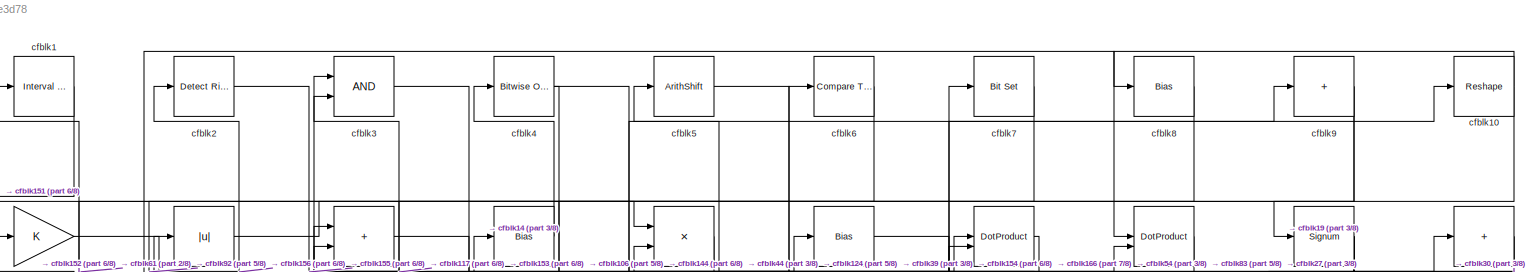
[diagram: root canvas - part 1/8, full width, top band]
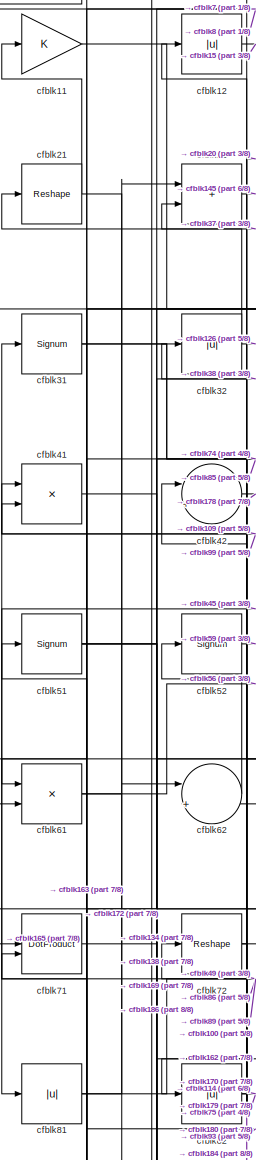
[diagram: root canvas - part 2/8, top left region]
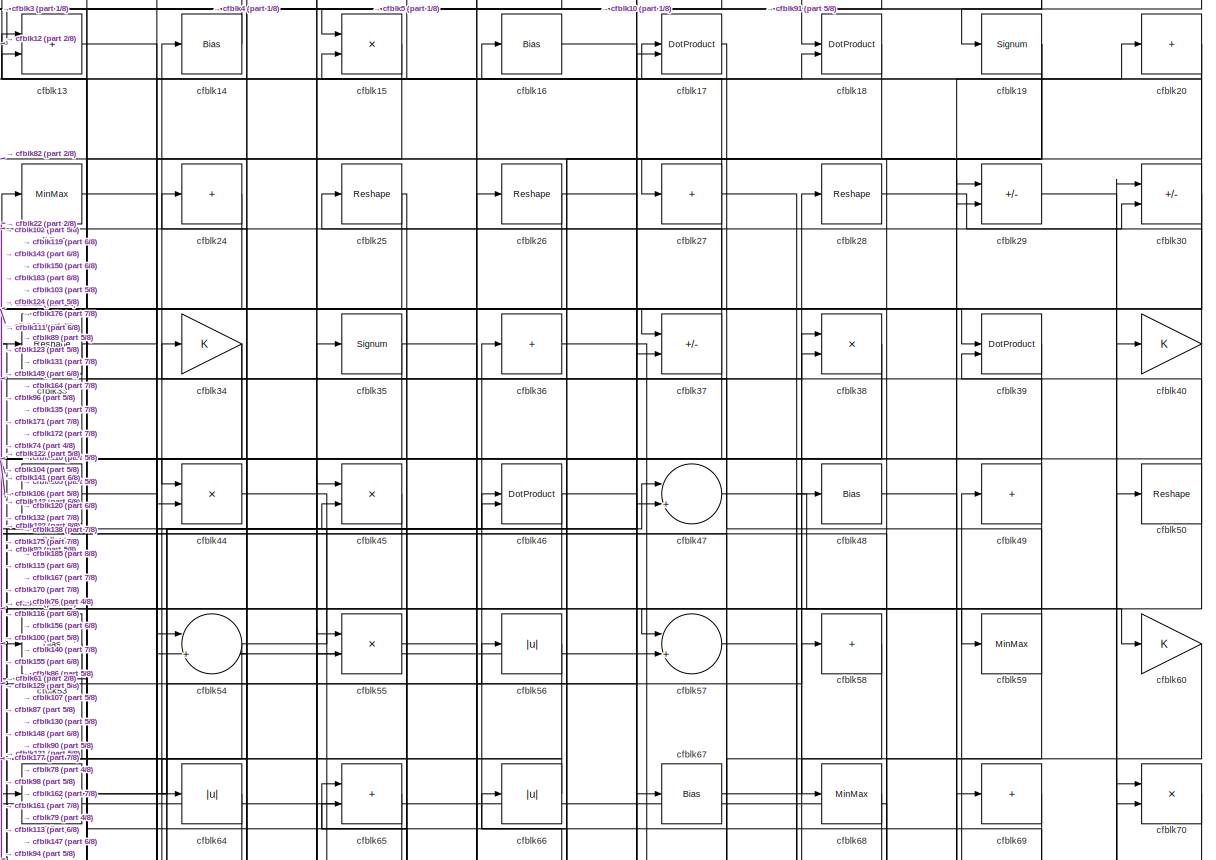
[diagram: root canvas - part 3/8, full width, top band]
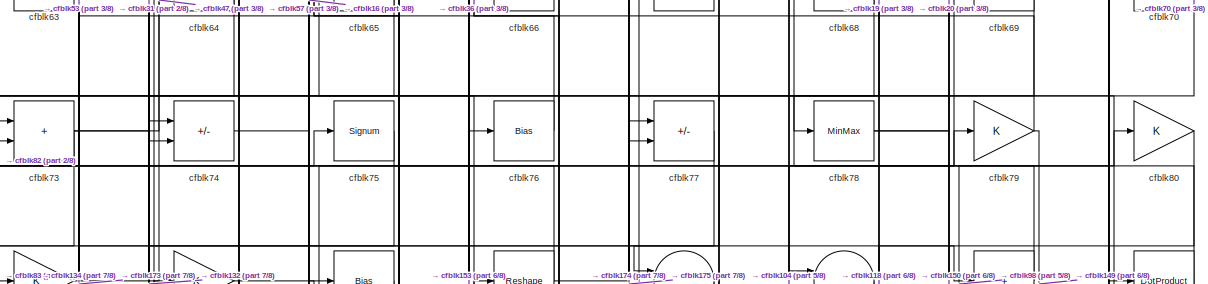
[diagram: root canvas - part 4/8, full width, middle band]
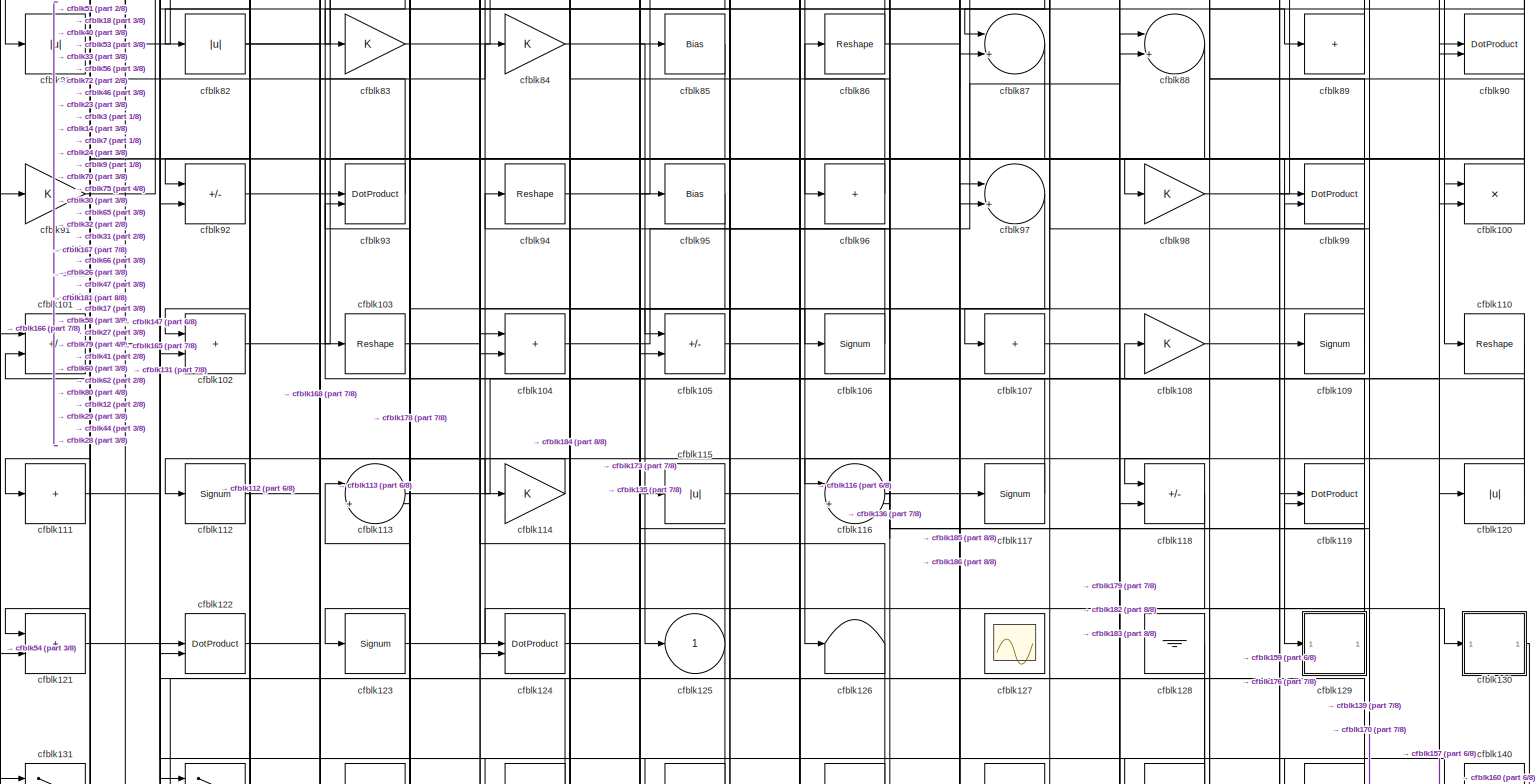
[diagram: root canvas - part 5/8, full width, middle band]
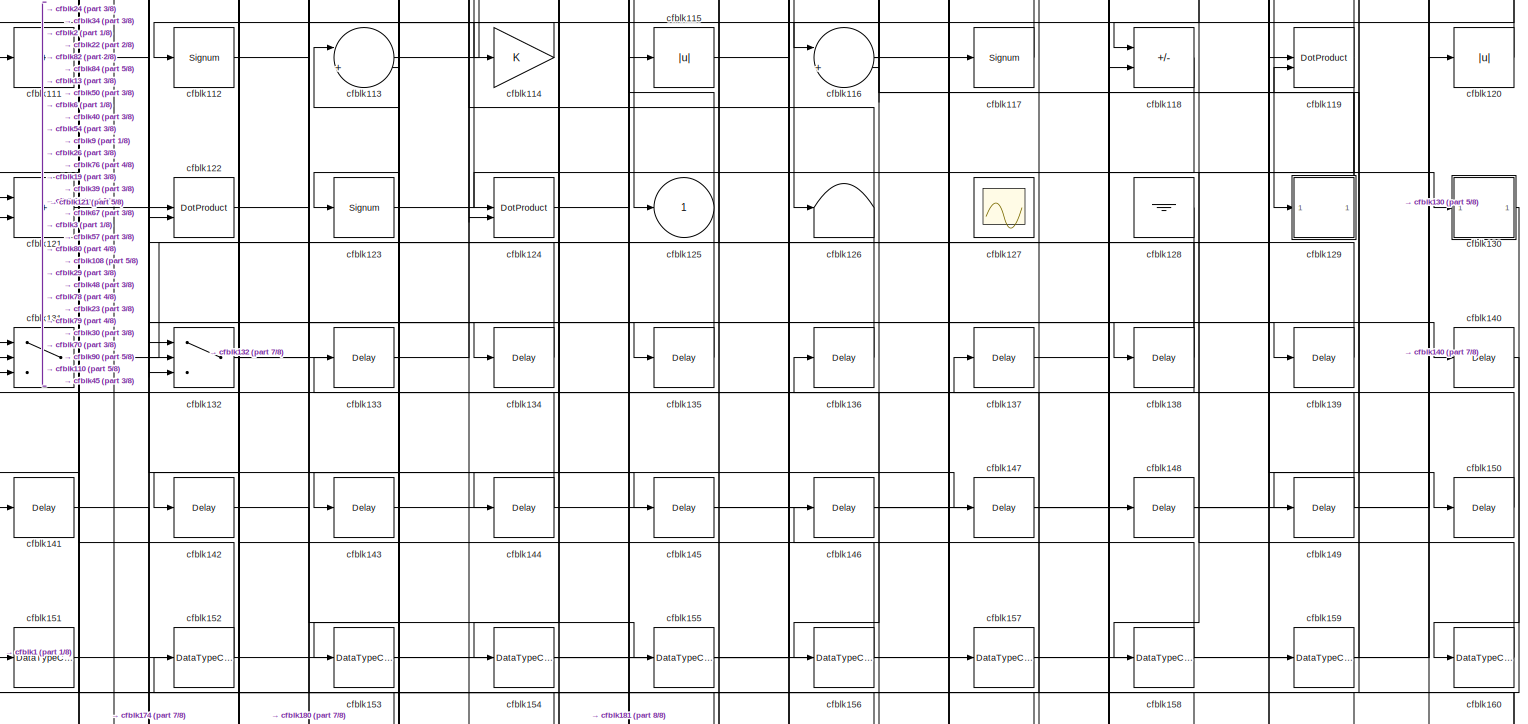
[diagram: root canvas - part 6/8, full width, bottom band]
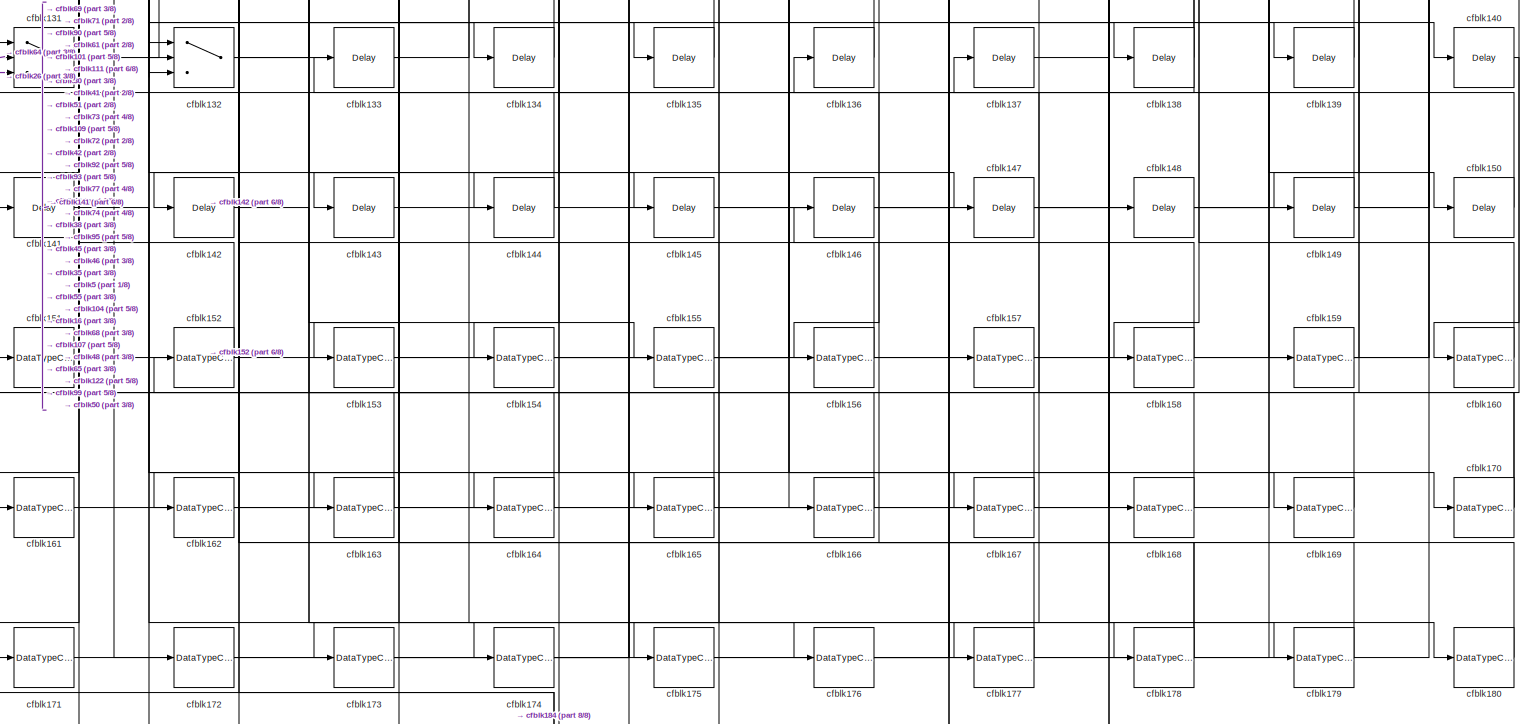
[diagram: root canvas - part 7/8, full width, bottom band]
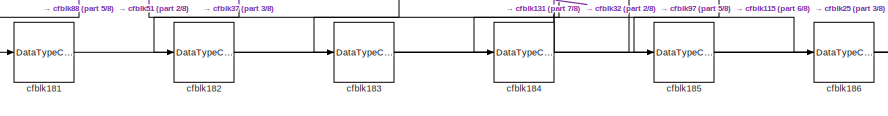
[diagram: root canvas - part 8/8, bottom left region]
MODEL slx_370438ae3d78
KIND model
CONFIG AbsTol = auto
CONFIG EnableMultiTasking = off
CONFIG FixedStep = auto
CONFIG MaxStep = auto
CONFIG MinStep = auto
CONFIG RelTol = 1e-3
CONFIG SampleTimeConstraint = Unconstrained
CONFIG SolverName = VariableStepAuto
CONFIG StartTime = 0.0
CONFIG StopTime = 10.0
BLOCK [Reference] cfblk1  REF=hdlsllib/Logic and Bit
Operations/Interval Test
  SourceBlock = hdlsllib/Logic and Bit\nOperations/Interval Test
  SourceType = Interval Test
BLOCK [Reshape] cfblk10
BLOCK [Product] cfblk100
  Inputs = */
  RndMeth = Zero
  SaturateOnIntegerOverflow = on
BLOCK [Sum] cfblk101
  IconShape = rectangular
  Inputs = +-
BLOCK [Sum] cfblk102
  IconShape = rectangular
BLOCK [Reshape] cfblk103
BLOCK [Sum] cfblk104
  IconShape = rectangular
BLOCK [Sum] cfblk105
  IconShape = rectangular
  Inputs = +-
BLOCK [Signum] cfblk106
BLOCK [Sum] cfblk107
  IconShape = rectangular
  Inputs = +
BLOCK [Gain] cfblk108
BLOCK [Signum] cfblk109
BLOCK [Gain] cfblk11
BLOCK [Reshape] cfblk110
BLOCK [Sum] cfblk111
  IconShape = rectangular
  Inputs = +
BLOCK [Signum] cfblk112
BLOCK [Sum] cfblk113
  Inputs = |++
BLOCK [Gain] cfblk114
BLOCK [Abs] cfblk115
  SaturateOnIntegerOverflow = off
BLOCK [Sum] cfblk116
  Inputs = |++
BLOCK [Signum] cfblk117
BLOCK [Sum] cfblk118
  IconShape = rectangular
  Inputs = +-
BLOCK [DotProduct] cfblk119
  OutDataTypeStr = Inherit: Inherit via internal rule
BLOCK [Abs] cfblk12
  SaturateOnIntegerOverflow = off
BLOCK [Abs] cfblk120
  SaturateOnIntegerOverflow = off
BLOCK [Sum] cfblk121
  IconShape = rectangular
BLOCK [DotProduct] cfblk122
  OutDataTypeStr = Inherit: Inherit via internal rule
BLOCK [Signum] cfblk123
BLOCK [DotProduct] cfblk124
  OutDataTypeStr = Inherit: Inherit via internal rule
BLOCK [Outport] cfblk125
  VectorParamsAs1DForOutWhenUnconnected = off
BLOCK [Terminator] cfblk126
BLOCK [Scope] cfblk127
  Floating = on
  NumInputPorts = 1
  ScopeSpecificationString = Simulink.scopes.TimeScopeBlockCfg('CurrentConfiguration', extmgr.ConfigurationSet(extmgr.Configuration('Core','General UI',true,'FigureColor',[0.156862745098039 0.156862745098039 0.156862745098039]),extmgr.Configuration('Core','Source UI',true),extmgr.Configuration('Sources','WiredSimulink',true,'DataLoggingVariableName','ScopeData1','DataLoggingSaveFormat','StructureWithTime','DataLoggingLimitDat...<+2713ch>
BLOCK [Ground] cfblk128
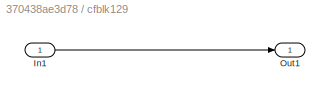
BLOCK [SubSystem] cfblk129
  LibrarySourceBlock = hdlsllib/Ports &\nSubsystems/Subsystem
BLOCK [Inport] cfblk129/In1
BLOCK [Outport] cfblk129/Out1
BLOCK [Sum] cfblk13
  IconShape = rectangular
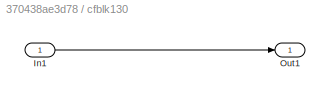
BLOCK [SubSystem] cfblk130
  LibrarySourceBlock = hdlsllib/Ports &\nSubsystems/Subsystem
BLOCK [Inport] cfblk130/In1
BLOCK [Outport] cfblk130/Out1
BLOCK [Switch] cfblk131
  InputSameDT = off
  SaturateOnIntegerOverflow = off
BLOCK [Switch] cfblk132
  InputSameDT = off
  SaturateOnIntegerOverflow = off
BLOCK [Delay] cfblk133
  InputPortMap = u0
  SampleTime = 1
BLOCK [Delay] cfblk134
  InputPortMap = u0
  SampleTime = 1
BLOCK [Delay] cfblk135
  InputPortMap = u0
  SampleTime = 1
BLOCK [Delay] cfblk136
  InputPortMap = u0
  SampleTime = 1
BLOCK [Delay] cfblk137
  InputPortMap = u0
  SampleTime = 1
BLOCK [Delay] cfblk138
  InputPortMap = u0
  SampleTime = 1
BLOCK [Delay] cfblk139
  InputPortMap = u0
  SampleTime = 1
BLOCK [Bias] cfblk14
  Bias = 0.0
  SaturateOnIntegerOverflow = off
BLOCK [Delay] cfblk140
  InputPortMap = u0
  SampleTime = 1
BLOCK [Delay] cfblk141
  InputPortMap = u0
  SampleTime = 1
BLOCK [Delay] cfblk142
  InputPortMap = u0
  SampleTime = 1
BLOCK [Delay] cfblk143
  InputPortMap = u0
  SampleTime = 1
BLOCK [Delay] cfblk144
  InputPortMap = u0
  SampleTime = 1
BLOCK [Delay] cfblk145
  InputPortMap = u0
  SampleTime = 1
BLOCK [Delay] cfblk146
  InputPortMap = u0
  SampleTime = 1
BLOCK [Delay] cfblk147
  InputPortMap = u0
  SampleTime = 1
BLOCK [Delay] cfblk148
  InputPortMap = u0
  SampleTime = 1
BLOCK [Delay] cfblk149
  InputPortMap = u0
  SampleTime = 1
BLOCK [Product] cfblk15
  Inputs = */
  RndMeth = Zero
  SaturateOnIntegerOverflow = on
BLOCK [Delay] cfblk150
  InputPortMap = u0
  SampleTime = 1
BLOCK [DataTypeConversion] cfblk151
  OutDataTypeStr = uint8
  RndMeth = Floor
  SaturateOnIntegerOverflow = off
BLOCK [DataTypeConversion] cfblk152
  OutDataTypeStr = uint8
  RndMeth = Floor
  SaturateOnIntegerOverflow = off
BLOCK [DataTypeConversion] cfblk153
  OutDataTypeStr = uint8
  RndMeth = Floor
  SaturateOnIntegerOverflow = off
BLOCK [DataTypeConversion] cfblk154
  OutDataTypeStr = uint8
  RndMeth = Floor
  SaturateOnIntegerOverflow = off
BLOCK [DataTypeConversion] cfblk155
  OutDataTypeStr = uint8
  RndMeth = Floor
  SaturateOnIntegerOverflow = off
BLOCK [DataTypeConversion] cfblk156
  OutDataTypeStr = uint8
  RndMeth = Floor
  SaturateOnIntegerOverflow = off
BLOCK [DataTypeConversion] cfblk157
  OutDataTypeStr = uint8
  RndMeth = Floor
  SaturateOnIntegerOverflow = off
BLOCK [DataTypeConversion] cfblk158
  OutDataTypeStr = uint8
  RndMeth = Floor
  SaturateOnIntegerOverflow = off
BLOCK [DataTypeConversion] cfblk159
  OutDataTypeStr = uint8
  RndMeth = Floor
  SaturateOnIntegerOverflow = off
BLOCK [Bias] cfblk16
  Bias = 0.0
  SaturateOnIntegerOverflow = off
BLOCK [DataTypeConversion] cfblk160
  OutDataTypeStr = uint8
  RndMeth = Floor
  SaturateOnIntegerOverflow = off
BLOCK [DataTypeConversion] cfblk161
  OutDataTypeStr = uint8
  RndMeth = Floor
  SaturateOnIntegerOverflow = off
BLOCK [DataTypeConversion] cfblk162
  OutDataTypeStr = uint8
  RndMeth = Floor
  SaturateOnIntegerOverflow = off
BLOCK [DataTypeConversion] cfblk163
  OutDataTypeStr = uint8
  RndMeth = Floor
  SaturateOnIntegerOverflow = off
BLOCK [DataTypeConversion] cfblk164
  OutDataTypeStr = uint8
  RndMeth = Floor
  SaturateOnIntegerOverflow = off
BLOCK [DataTypeConversion] cfblk165
  OutDataTypeStr = uint8
  RndMeth = Floor
  SaturateOnIntegerOverflow = off
BLOCK [DataTypeConversion] cfblk166
  OutDataTypeStr = uint8
  RndMeth = Floor
  SaturateOnIntegerOverflow = off
BLOCK [DataTypeConversion] cfblk167
  OutDataTypeStr = uint8
  RndMeth = Floor
  SaturateOnIntegerOverflow = off
BLOCK [DataTypeConversion] cfblk168
  OutDataTypeStr = uint8
  RndMeth = Floor
  SaturateOnIntegerOverflow = off
BLOCK [DataTypeConversion] cfblk169
  OutDataTypeStr = uint8
  RndMeth = Floor
  SaturateOnIntegerOverflow = off
BLOCK [DotProduct] cfblk17
  OutDataTypeStr = Inherit: Inherit via internal rule
BLOCK [DataTypeConversion] cfblk170
  RndMeth = Floor
  SaturateOnIntegerOverflow = off
BLOCK [DataTypeConversion] cfblk171
  OutDataTypeStr = uint8
  RndMeth = Floor
  SaturateOnIntegerOverflow = off
BLOCK [DataTypeConversion] cfblk172
  OutDataTypeStr = uint8
  RndMeth = Floor
  SaturateOnIntegerOverflow = off
BLOCK [DataTypeConversion] cfblk173
  OutDataTypeStr = uint8
  RndMeth = Floor
  SaturateOnIntegerOverflow = off
BLOCK [DataTypeConversion] cfblk174
  OutDataTypeStr = uint8
  RndMeth = Floor
  SaturateOnIntegerOverflow = off
BLOCK [DataTypeConversion] cfblk175
  OutDataTypeStr = uint8
  RndMeth = Floor
  SaturateOnIntegerOverflow = off
BLOCK [DataTypeConversion] cfblk176
  RndMeth = Floor
  SaturateOnIntegerOverflow = off
BLOCK [DataTypeConversion] cfblk177
  OutDataTypeStr = uint8
  RndMeth = Floor
  SaturateOnIntegerOverflow = off
BLOCK [DataTypeConversion] cfblk178
  RndMeth = Floor
  SaturateOnIntegerOverflow = off
BLOCK [DataTypeConversion] cfblk179
  OutDataTypeStr = uint8
  RndMeth = Floor
  SaturateOnIntegerOverflow = off
BLOCK [DotProduct] cfblk18
  OutDataTypeStr = Inherit: Inherit via internal rule
BLOCK [DataTypeConversion] cfblk180
  OutDataTypeStr = uint8
  RndMeth = Floor
  SaturateOnIntegerOverflow = off
BLOCK [DataTypeConversion] cfblk181
  OutDataTypeStr = uint8
  RndMeth = Floor
  SaturateOnIntegerOverflow = off
BLOCK [DataTypeConversion] cfblk182
  OutDataTypeStr = uint8
  RndMeth = Floor
  SaturateOnIntegerOverflow = off
BLOCK [DataTypeConversion] cfblk183
  OutDataTypeStr = uint8
  RndMeth = Floor
  SaturateOnIntegerOverflow = off
BLOCK [DataTypeConversion] cfblk184
  RndMeth = Floor
  SaturateOnIntegerOverflow = off
BLOCK [DataTypeConversion] cfblk185
  OutDataTypeStr = uint8
  RndMeth = Floor
  SaturateOnIntegerOverflow = off
BLOCK [DataTypeConversion] cfblk186
  OutDataTypeStr = uint8
  RndMeth = Floor
  SaturateOnIntegerOverflow = off
BLOCK [Signum] cfblk19
BLOCK [Reference] cfblk2  REF=hdlsllib/Logic and Bit
Operations/Detect Rise
Positive
  SourceBlock = hdlsllib/Logic and Bit\nOperations/Detect Rise\nPositive
  SourceType = Detect Rise Positive
BLOCK [Sum] cfblk20
  IconShape = rectangular
  Inputs = +
BLOCK [Reshape] cfblk21
BLOCK [Sum] cfblk22
  IconShape = rectangular
BLOCK [MinMax] cfblk23
BLOCK [Sum] cfblk24
  IconShape = rectangular
  Inputs = +
BLOCK [Reshape] cfblk25
BLOCK [Reshape] cfblk26
BLOCK [Sum] cfblk27
  IconShape = rectangular
  Inputs = +
BLOCK [Reshape] cfblk28
BLOCK [Sum] cfblk29
  IconShape = rectangular
  Inputs = +-
BLOCK [Logic] cfblk3
  AllPortsSameDT = off
  OutDataTypeStr = boolean
BLOCK [Sum] cfblk30
  IconShape = rectangular
  Inputs = +-
BLOCK [Signum] cfblk31
BLOCK [Abs] cfblk32
  SaturateOnIntegerOverflow = off
BLOCK [Reshape] cfblk33
BLOCK [Gain] cfblk34
BLOCK [Signum] cfblk35
BLOCK [Sum] cfblk36
  IconShape = rectangular
  Inputs = +
BLOCK [Sum] cfblk37
  IconShape = rectangular
  Inputs = +-
BLOCK [Product] cfblk38
  Inputs = */
  RndMeth = Zero
  SaturateOnIntegerOverflow = on
BLOCK [DotProduct] cfblk39
  OutDataTypeStr = Inherit: Inherit via internal rule
BLOCK [Reference] cfblk4  REF=simulink/Logic and Bit
Operations/Bitwise
Operator
  LibrarySourceBlock = hdlsllib/Logic and Bit\nOperations/Bitwise\nOperator
  SourceBlock = simulink/Logic and Bit\nOperations/Bitwise\nOperator
  SourceType = Bitwise Operator
BLOCK [Gain] cfblk40
BLOCK [Product] cfblk41
  Inputs = */
  RndMeth = Zero
  SaturateOnIntegerOverflow = on
BLOCK [Sum] cfblk42
  Inputs = |++
BLOCK [Sum] cfblk43
  IconShape = rectangular
  Inputs = +
BLOCK [Product] cfblk44
  Inputs = */
  RndMeth = Zero
  SaturateOnIntegerOverflow = on
BLOCK [Product] cfblk45
  Inputs = */
  RndMeth = Zero
  SaturateOnIntegerOverflow = on
BLOCK [DotProduct] cfblk46
  OutDataTypeStr = Inherit: Inherit via internal rule
BLOCK [Sum] cfblk47
  Inputs = |++
BLOCK [Bias] cfblk48
  Bias = 0.0
  SaturateOnIntegerOverflow = off
BLOCK [Sum] cfblk49
  IconShape = rectangular
  Inputs = +
BLOCK [ArithShift] cfblk5
  BitShiftNumber = 8
  InputPortMap = u0
BLOCK [Reshape] cfblk50
BLOCK [Signum] cfblk51
BLOCK [Signum] cfblk52
BLOCK [Bias] cfblk53
  Bias = 0.0
  SaturateOnIntegerOverflow = off
BLOCK [Sum] cfblk54
  Inputs = |++
BLOCK [Product] cfblk55
  Inputs = */
  RndMeth = Zero
  SaturateOnIntegerOverflow = on
BLOCK [Abs] cfblk56
  SaturateOnIntegerOverflow = off
BLOCK [Sum] cfblk57
  Inputs = |++
BLOCK [Sum] cfblk58
  IconShape = rectangular
  Inputs = +
BLOCK [MinMax] cfblk59
BLOCK [Reference] cfblk6  REF=hdlsllib/Logic and Bit
Operations/Compare
To Zero
  SourceBlock = hdlsllib/Logic and Bit\nOperations/Compare\nTo Zero
  SourceType = Compare To Zero
BLOCK [Gain] cfblk60
BLOCK [Product] cfblk61
  Inputs = */
  RndMeth = Zero
  SaturateOnIntegerOverflow = on
BLOCK [Sum] cfblk62
  Inputs = |++
BLOCK [Reshape] cfblk63
BLOCK [Abs] cfblk64
  SaturateOnIntegerOverflow = off
BLOCK [Sum] cfblk65
  IconShape = rectangular
BLOCK [Abs] cfblk66
  SaturateOnIntegerOverflow = off
BLOCK [Bias] cfblk67
  Bias = 0.0
  SaturateOnIntegerOverflow = off
BLOCK [MinMax] cfblk68
BLOCK [Sum] cfblk69
  IconShape = rectangular
  Inputs = +
BLOCK [Reference] cfblk7  REF=simulink/Logic and Bit
Operations/Bit Set
  LibrarySourceBlock = hdlsllib/Logic and Bit\nOperations/Bit Set
  SourceBlock = simulink/Logic and Bit\nOperations/Bit Set
  SourceType = Bit Set
BLOCK [Product] cfblk70
  Inputs = */
  RndMeth = Zero
  SaturateOnIntegerOverflow = on
BLOCK [DotProduct] cfblk71
  OutDataTypeStr = Inherit: Inherit via internal rule
BLOCK [Reshape] cfblk72
BLOCK [Sum] cfblk73
  IconShape = rectangular
BLOCK [Sum] cfblk74
  IconShape = rectangular
  Inputs = +-
BLOCK [Signum] cfblk75
BLOCK [Bias] cfblk76
  Bias = 0.0
  SaturateOnIntegerOverflow = off
BLOCK [Sum] cfblk77
  IconShape = rectangular
  Inputs = +-
BLOCK [MinMax] cfblk78
BLOCK [Gain] cfblk79
BLOCK [Bias] cfblk8
  Bias = 0.0
  SaturateOnIntegerOverflow = off
BLOCK [Gain] cfblk80
BLOCK [Abs] cfblk81
  SaturateOnIntegerOverflow = off
BLOCK [Abs] cfblk82
  SaturateOnIntegerOverflow = off
BLOCK [Gain] cfblk83
BLOCK [Gain] cfblk84
BLOCK [Bias] cfblk85
  Bias = 0.0
  SaturateOnIntegerOverflow = off
BLOCK [Reshape] cfblk86
BLOCK [Sum] cfblk87
  Inputs = |++
BLOCK [Sum] cfblk88
  Inputs = |++
BLOCK [Sum] cfblk89
  IconShape = rectangular
  Inputs = +
BLOCK [Sum] cfblk9
  IconShape = rectangular
  Inputs = +
BLOCK [DotProduct] cfblk90
  OutDataTypeStr = Inherit: Inherit via internal rule
BLOCK [Gain] cfblk91
BLOCK [Sum] cfblk92
  IconShape = rectangular
  Inputs = +-
BLOCK [DotProduct] cfblk93
  OutDataTypeStr = Inherit: Inherit via internal rule
BLOCK [Reshape] cfblk94
BLOCK [Bias] cfblk95
  Bias = 0.0
  SaturateOnIntegerOverflow = off
BLOCK [Sum] cfblk96
  IconShape = rectangular
  Inputs = +
BLOCK [Sum] cfblk97
  Inputs = |++
BLOCK [Gain] cfblk98
BLOCK [DotProduct] cfblk99
  OutDataTypeStr = Inherit: Inherit via internal rule
NET cfblk100:1 -> cfblk62:2, cfblk96:1
LINE cfblk101:1 -> cfblk165:1
LINE cfblk102:1 -> cfblk46:1
LINE cfblk103:1 -> cfblk46:2
LINE cfblk104:1 -> cfblk79:1
LINE cfblk105:1 -> cfblk58:1
LINE cfblk106:1 -> cfblk65:1
LINE cfblk107:1 -> cfblk179:1
LINE cfblk108:1 -> cfblk159:1
LINE cfblk109:1 -> cfblk41:2
NET cfblk10:1 -> cfblk19:1, cfblk8:1
LINE cfblk110:1 -> cfblk113:2
LINE cfblk111:1 -> cfblk132:1
LINE cfblk112:1 -> cfblk84:1
LINE cfblk113:1 -> cfblk40:1
LINE cfblk114:1 -> cfblk112:1
LINE cfblk115:1 -> cfblk26:1
NET cfblk116:1 -> cfblk117:1, cfblk86:1
LINE cfblk117:1 -> cfblk3:2
LINE cfblk118:1 -> cfblk154:1
NET cfblk119:1 -> cfblk158:1, cfblk23:1
LINE cfblk11:1 -> cfblk37:1
LINE cfblk120:1 -> cfblk45:2
LINE cfblk121:1 -> cfblk147:1
LINE cfblk122:1 -> cfblk18:2
LINE cfblk123:1 -> cfblk14:1
LINE cfblk124:1 -> cfblk9:1
LINE cfblk128:1 -> cfblk91:1
LINE cfblk129/In1:1 -> cfblk129/Out1:1
NET cfblk129:1 -> cfblk66:1, cfblk94:1
LINE cfblk12:1 -> cfblk15:1
LINE cfblk130/In1:1 -> cfblk130/Out1:1
LINE cfblk130:1 -> cfblk160:1
LINE cfblk131:1 -> cfblk109:1
NET cfblk132:1 -> cfblk139:1, cfblk74:1
LINE cfblk133:1 -> cfblk163:1
LINE cfblk134:1 -> cfblk73:2
LINE cfblk135:1 -> cfblk45:1
LINE cfblk136:1 -> cfblk104:1
LINE cfblk137:1 -> cfblk168:1
LINE cfblk138:1 -> cfblk65:2
LINE cfblk139:1 -> cfblk122:1
LINE cfblk13:1 -> cfblk54:1
LINE cfblk140:1 -> cfblk152:1
LINE cfblk141:1 -> cfblk174:1
LINE cfblk142:1 -> cfblk180:1
LINE cfblk143:1 -> cfblk29:1
LINE cfblk144:1 -> cfblk113:1
LINE cfblk145:1 -> cfblk118:2
LINE cfblk146:1 -> cfblk157:1
LINE cfblk147:1 -> cfblk70:1
LINE cfblk148:1 -> cfblk30:1
LINE cfblk149:1 -> cfblk54:2
LINE cfblk14:1 -> cfblk4:1
LINE cfblk150:1 -> cfblk13:2
LINE cfblk151:1 -> cfblk120:1
LINE cfblk152:1 -> cfblk1:1
LINE cfblk153:1 -> cfblk76:1
LINE cfblk154:1 -> cfblk6:1
LINE cfblk155:1 -> cfblk67:1
LINE cfblk156:1 -> cfblk2:1
LINE cfblk157:1 -> cfblk90:2
LINE cfblk158:1 -> cfblk146:1
LINE cfblk159:1 -> cfblk119:2
LINE cfblk15:1 -> cfblk33:1
LINE cfblk160:1 -> cfblk108:1
LINE cfblk161:1 -> cfblk48:1
LINE cfblk162:1 -> cfblk69:1
LINE cfblk163:1 -> cfblk71:2
LINE cfblk164:1 -> cfblk133:1
LINE cfblk165:1 -> cfblk71:1
LINE cfblk166:1 -> cfblk101:1
LINE cfblk167:1 -> cfblk101:2
LINE cfblk168:1 -> cfblk93:1
LINE cfblk169:1 -> cfblk137:1
LINE cfblk16:1 -> cfblk140:1
NET cfblk170:1 -> cfblk72:1, cfblk99:2
LINE cfblk171:1 -> cfblk55:1
LINE cfblk172:1 -> cfblk55:2
LINE cfblk173:1 -> cfblk95:1
LINE cfblk174:1 -> cfblk77:1
LINE cfblk175:1 -> cfblk77:2
NET cfblk176:1 -> cfblk50:1, cfblk99:1
LINE cfblk177:1 -> cfblk43:1
NET cfblk178:1 -> cfblk136:1, cfblk93:2
LINE cfblk179:1 -> cfblk42:1
LINE cfblk17:1 -> cfblk107:1
LINE cfblk180:1 -> cfblk42:2
LINE cfblk181:1 -> cfblk115:1
LINE cfblk182:1 -> cfblk88:1
LINE cfblk183:1 -> cfblk88:2
NET cfblk184:1 -> cfblk131:1, cfblk32:1
LINE cfblk185:1 -> cfblk97:1
LINE cfblk186:1 -> cfblk97:2
LINE cfblk18:1 -> cfblk27:1
NET cfblk19:1 -> cfblk116:1, cfblk116:2, cfblk124:2, cfblk29:2, cfblk78:1
LINE cfblk1:1 -> cfblk151:1
NET cfblk20:1 -> cfblk15:2, cfblk82:1
NET cfblk21:1 -> cfblk11:1, cfblk62:1
LINE cfblk22:1 -> cfblk145:1
LINE cfblk23:1 -> cfblk89:1
LINE cfblk24:1 -> cfblk111:1
NET cfblk25:1 -> cfblk183:1, cfblk185:1
NET cfblk26:1 -> cfblk100:2, cfblk131:3
NET cfblk27:1 -> cfblk121:1, cfblk130:1, cfblk5:1
LINE cfblk28:1 -> cfblk30:2
LINE cfblk29:1 -> cfblk90:1
LINE cfblk2:1 -> cfblk155:1
NET cfblk30:1 -> cfblk105:1, cfblk132:3, cfblk37:2, cfblk3:1
NET cfblk31:1 -> cfblk74:2, cfblk85:1
NET cfblk32:1 -> cfblk126:1, cfblk21:1
NET cfblk33:1 -> cfblk17:1, cfblk92:1
NET cfblk34:1 -> cfblk141:1, cfblk142:1
NET cfblk35:1 -> cfblk167:1, cfblk44:2
LINE cfblk36:1 -> cfblk129:1
NET cfblk37:1 -> cfblk182:1, cfblk22:2
NET cfblk38:1 -> cfblk164:1, cfblk64:1
LINE cfblk39:1 -> cfblk156:1
LINE cfblk3:1 -> cfblk106:1
NET cfblk40:1 -> cfblk122:2, cfblk25:1
LINE cfblk41:1 -> cfblk134:1
LINE cfblk42:1 -> cfblk178:1
LINE cfblk43:1 -> cfblk176:1
LINE cfblk44:1 -> cfblk110:1
LINE cfblk45:1 -> cfblk81:1
NET cfblk46:1 -> cfblk175:1, cfblk87:2
LINE cfblk47:1 -> cfblk60:1
LINE cfblk48:1 -> cfblk119:1
NET cfblk49:1 -> cfblk13:1, cfblk57:1
NET cfblk4:1 -> cfblk39:1, cfblk44:1
NET cfblk50:1 -> cfblk143:1, cfblk39:2
NET cfblk51:1 -> cfblk138:1, cfblk169:1, cfblk186:1
LINE cfblk52:1 -> cfblk59:1
LINE cfblk53:1 -> cfblk102:2
NET cfblk54:1 -> cfblk10:1, cfblk121:2
LINE cfblk55:1 -> cfblk170:1
LINE cfblk56:1 -> cfblk102:1
LINE cfblk57:1 -> cfblk148:1
LINE cfblk58:1 -> cfblk87:1
NET cfblk59:1 -> cfblk34:1, cfblk68:1
LINE cfblk5:1 -> cfblk166:1
LINE cfblk60:1 -> cfblk98:1
NET cfblk61:1 -> cfblk172:1, cfblk56:1
LINE cfblk62:1 -> cfblk52:1
NET cfblk63:1 -> cfblk17:2, cfblk35:1
LINE cfblk64:1 -> cfblk131:2
LINE cfblk65:1 -> cfblk104:2
LINE cfblk66:1 -> cfblk63:1
LINE cfblk67:1 -> cfblk38:1
LINE cfblk68:1 -> cfblk177:1
LINE cfblk69:1 -> cfblk161:1
LINE cfblk6:1 -> cfblk153:1
LINE cfblk70:1 -> cfblk73:1
LINE cfblk71:1 -> cfblk38:2
NET cfblk72:1 -> cfblk100:1, cfblk162:1
NET cfblk73:1 -> cfblk132:2, cfblk47:1, cfblk57:2
LINE cfblk74:1 -> cfblk16:1
LINE cfblk75:1 -> cfblk83:1
LINE cfblk76:1 -> cfblk53:1
LINE cfblk77:1 -> cfblk173:1
NET cfblk78:1 -> cfblk150:1, cfblk20:1
NET cfblk79:1 -> cfblk149:1, cfblk36:1
LINE cfblk7:1 -> cfblk61:2
LINE cfblk80:1 -> cfblk118:1
NET cfblk81:1 -> cfblk22:1, cfblk49:1
NET cfblk82:1 -> cfblk114:1, cfblk75:1
LINE cfblk83:1 -> cfblk7:1
LINE cfblk84:1 -> cfblk125:1
LINE cfblk85:1 -> cfblk103:1
NET cfblk86:1 -> cfblk31:1, cfblk47:2
LINE cfblk87:1 -> cfblk124:1
LINE cfblk88:1 -> cfblk181:1
LINE cfblk89:1 -> cfblk12:1
LINE cfblk8:1 -> cfblk61:1
NET cfblk90:1 -> cfblk171:1, cfblk28:1
LINE cfblk91:1 -> cfblk18:1
LINE cfblk92:1 -> cfblk135:1
LINE cfblk93:1 -> cfblk51:1
LINE cfblk94:1 -> cfblk70:2
LINE cfblk95:1 -> cfblk123:1
LINE cfblk96:1 -> cfblk24:1
LINE cfblk97:1 -> cfblk184:1
LINE cfblk98:1 -> cfblk80:1
NET cfblk99:1 -> cfblk105:2, cfblk41:1
NET cfblk9:1 -> cfblk144:1, cfblk92:2
note: NET lines group one-source signal fan-out (src -> all destinations, sorted); 1:1 wires keep LINE
